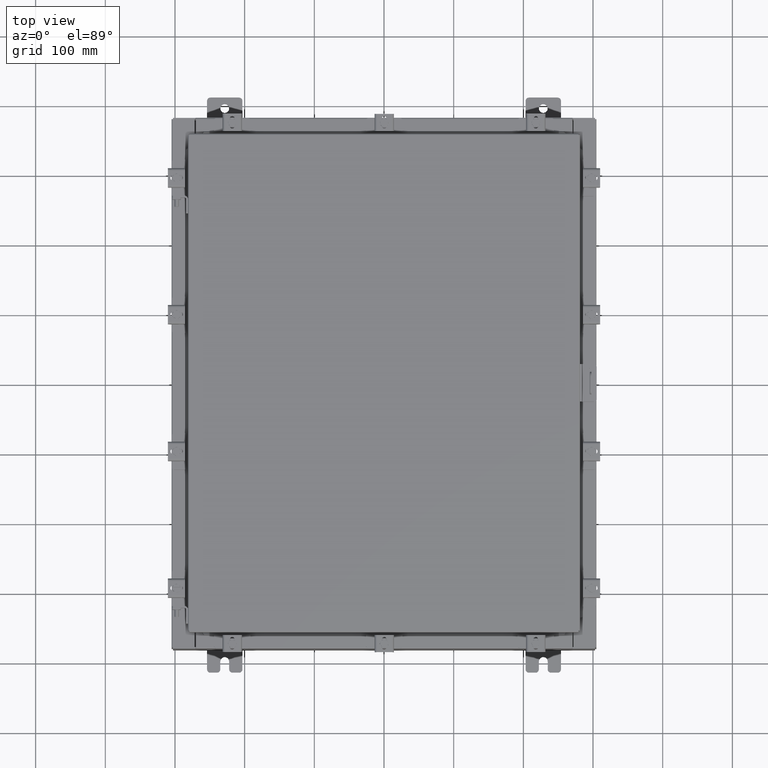
[diagram: clean part render]
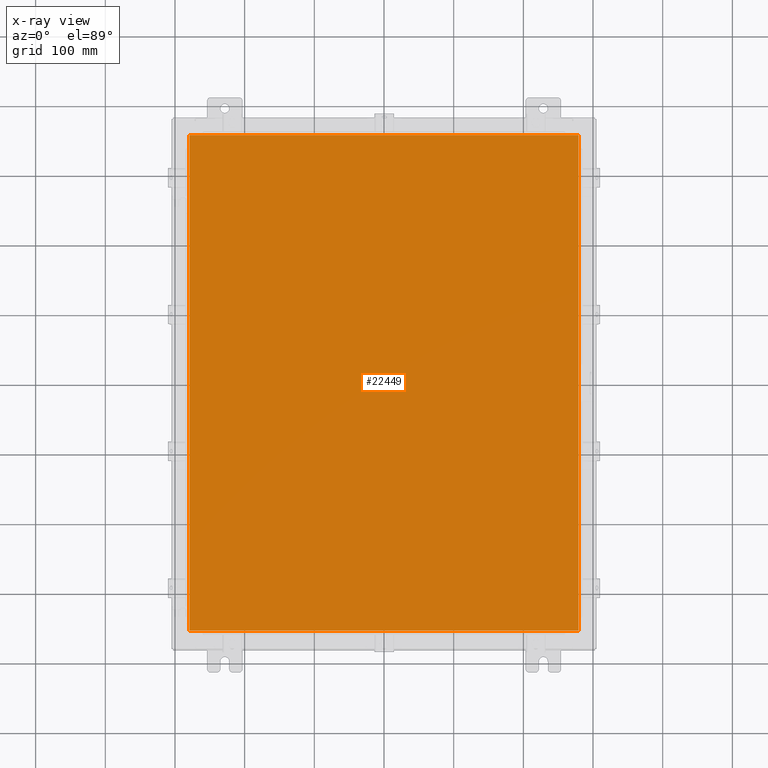
[diagram: x-ray — body ghosted, one internal face saturated and labeled with its STEP entity id]
A machine part, top view, then the same camera in x-ray: the body is ghosted and one INTERNAL B-rep face — a face not visible from any outside direction — is saturated and labeled: STEP entity #22449.
In plain terms, the highlighted planar face has unit normal (0, 0, -1).
Its self-contained STEP definition (entity closure, byte-faithful):
#1523 = CARTESIAN_POINT ( 'NONE',  ( 10.99030000000000000, -14.00629999999999800, -0.07470000000000019700 ) ) ;
#2482 = DIRECTION ( 'NONE',  ( 1.000000000000000000, -0.0000000000000000000, -0.0000000000000000000 ) ) ;
#3207 = VECTOR ( 'NONE', #5332, 39.37007874015748100 ) ;
#3746 = LINE ( 'NONE', #1523, #12668 ) ;
#5332 = DIRECTION ( 'NONE',  ( 0.0000000000000000000, -1.000000000000000000, 0.0000000000000000000 ) ) ;
#5391 = VERTEX_POINT ( 'NONE', #10705 ) ;
#5765 = CARTESIAN_POINT ( 'NONE',  ( 10.99030000000000000, 14.00629999999999800, -0.07470000000000019700 ) ) ;
#5803 = CARTESIAN_POINT ( 'NONE',  ( -10.99030000000000000, -14.00629999999999600, -0.07470000000000000300 ) ) ;
#5970 = CARTESIAN_POINT ( 'NONE',  ( -10.99030000000000000, 14.00629999999999800, -0.07470000000000000300 ) ) ;
#6276 = VERTEX_POINT ( 'NONE', #5970 ) ;
#6364 = CARTESIAN_POINT ( 'NONE',  ( 0.0000000000000000000, 0.0000000000000000000, -0.07470000000000000300 ) ) ;
#6582 = EDGE_LOOP ( 'NONE', ( #10033, #20815, #11318, #10710 ) ) ;
#8278 = AXIS2_PLACEMENT_3D ( 'NONE', #6364, #20674, #9946 ) ;
#8324 = VERTEX_POINT ( 'NONE', #21961 ) ;
#8511 = LINE ( 'NONE', #19614, #3207 ) ;
#8803 = EDGE_CURVE ( 'NONE', #6276, #17726, #8511, .T. ) ;
#9548 = EDGE_CURVE ( 'NONE', #5391, #6276, #13205, .T. ) ;
#9946 = DIRECTION ( 'NONE',  ( -1.000000000000000000, 0.0000000000000000000, -0.0000000000000000000 ) ) ;
#10033 = ORIENTED_EDGE ( 'NONE', *, *, #19583, .F. ) ;
#10705 = CARTESIAN_POINT ( 'NONE',  ( 10.99030000000000000, 14.00629999999999800, -0.07470000000000000300 ) ) ;
#10706 = VECTOR ( 'NONE', #2482, 39.37007874015748100 ) ;
#10710 = ORIENTED_EDGE ( 'NONE', *, *, #9548, .F. ) ;
#11318 = ORIENTED_EDGE ( 'NONE', *, *, #8803, .F. ) ;
#12100 = FACE_OUTER_BOUND ( 'NONE', #6582, .T. ) ;
#12668 = VECTOR ( 'NONE', #21191, 39.37007874015748100 ) ;
#13159 = CARTESIAN_POINT ( 'NONE',  ( -10.99029999999999600, -14.00629999999999800, -0.07470000000000019700 ) ) ;
#13205 = LINE ( 'NONE', #5765, #22726 ) ;
#14903 = LINE ( 'NONE', #13159, #10706 ) ;
#17726 = VERTEX_POINT ( 'NONE', #5803 ) ;
#18262 = DIRECTION ( 'NONE',  ( -1.000000000000000000, -0.0000000000000000000, -0.0000000000000000000 ) ) ;
#18856 = PLANE ( 'NONE',  #8278 ) ;
#19583 = EDGE_CURVE ( 'NONE', #8324, #5391, #3746, .T. ) ;
#19614 = CARTESIAN_POINT ( 'NONE',  ( -10.99030000000000000, 14.00630000000000100, -0.07470000000000019700 ) ) ;
#20674 = DIRECTION ( 'NONE',  ( 0.0000000000000000000, 0.0000000000000000000, -1.000000000000000000 ) ) ;
#20815 = ORIENTED_EDGE ( 'NONE', *, *, #22305, .F. ) ;
#21191 = DIRECTION ( 'NONE',  ( 0.0000000000000000000, 1.000000000000000000, 0.0000000000000000000 ) ) ;
#21961 = CARTESIAN_POINT ( 'NONE',  ( 10.99030000000000000, -14.00629999999999800, -0.07470000000000000300 ) ) ;
#22305 = EDGE_CURVE ( 'NONE', #17726, #8324, #14903, .T. ) ;
#22449 = ADVANCED_FACE ( 'NONE', ( #12100 ), #18856, .T. ) ;
#22726 = VECTOR ( 'NONE', #18262, 39.37007874015748100 ) ;